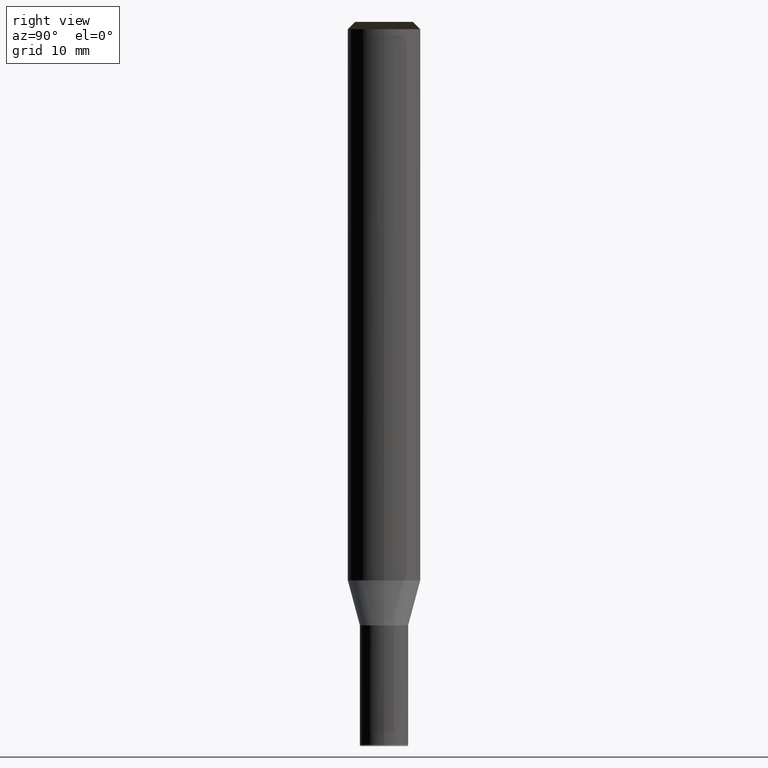
[diagram: clean part render]
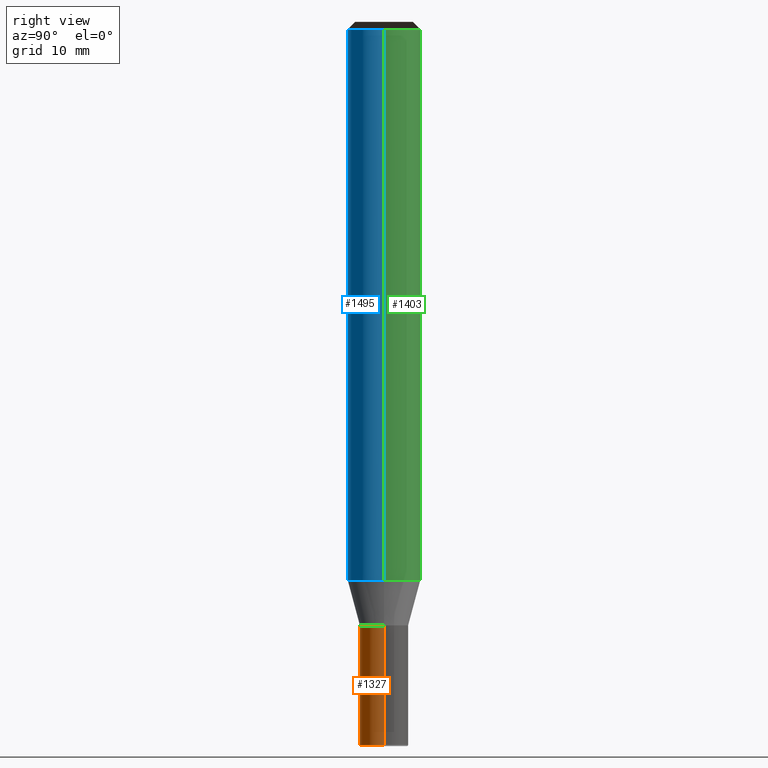
[diagram: same view with three faces highlighted in distinct colors, each labeled with its STEP entity id]
A machine part, right view with three faces highlighted in distinct colors.
Their STEP definitions:

[orange] entity #1327 — the highlighted face is a freeform B-spline surface patch.
#1137=CARTESIAN_POINT('',(2.0,0.0,-13.632050807569));
#1141=CARTESIAN_POINT('',(-2.0,0.0,-13.632050807569));
#1142=CARTESIAN_POINT('',(2.0,0.0,-3.732050807569));
#1146=CARTESIAN_POINT('',(-2.0,0.0,-3.732050807569));
#1160=CARTESIAN_POINT('',(-2.0,-2.0,-13.632050807569));
#1161=CARTESIAN_POINT('',(0.0,-2.0,-13.632050807569));
#1162=CARTESIAN_POINT('',(2.0,-2.0,-13.632050807569));
#1163=CARTESIAN_POINT('',(-2.0,-2.0,-3.732050807569));
#1164=CARTESIAN_POINT('',(0.0,-2.0,-3.732050807569));
#1165=CARTESIAN_POINT('',(2.0,-2.0,-3.732050807569));
#1308=(
BOUNDED_SURFACE()
B_SPLINE_SURFACE(1,2,(
(#1141,#1160,#1161,#1162,#1137),
(#1146,#1163,#1164,#1165,#1142)
), .UNSPECIFIED.,.F.,.F.,.F.)
B_SPLINE_SURFACE_WITH_KNOTS((2,2),(3,2,3),(
0.0,1.0),(
0.0,0.5,1.0), .UNSPECIFIED.)
GEOMETRIC_REPRESENTATION_ITEM()
RATIONAL_B_SPLINE_SURFACE(((1.0,0.707106781187,1.0,0.707106781187,1.0),
(1.0,0.707106781187,1.0,0.707106781187,1.0)
))
REPRESENTATION_ITEM('')
SURFACE()
);
#1309=(
BOUNDED_CURVE()
B_SPLINE_CURVE(1,(#1146,#1141),.UNSPECIFIED.,.F.,.F.)
B_SPLINE_CURVE_WITH_KNOTS((2,2),
(0.0,1.0),.UNSPECIFIED.)
CURVE()
GEOMETRIC_REPRESENTATION_ITEM()
RATIONAL_B_SPLINE_CURVE((1.0,1.0))
REPRESENTATION_ITEM('')
);
#1310=(
BOUNDED_CURVE()
B_SPLINE_CURVE(2,(#1141,#1160,#1161,#1162,#1137),.UNSPECIFIED.,.F.,.F.)
B_SPLINE_CURVE_WITH_KNOTS((3,2,3),
(0.0,0.5,1.0),.UNSPECIFIED.)
CURVE()
GEOMETRIC_REPRESENTATION_ITEM()
RATIONAL_B_SPLINE_CURVE((1.0,0.707106781187,1.0,0.707106781187,1.0))
REPRESENTATION_ITEM('')
);
#1311=(
BOUNDED_CURVE()
B_SPLINE_CURVE(1,(#1137,#1142),.UNSPECIFIED.,.F.,.F.)
B_SPLINE_CURVE_WITH_KNOTS((2,2),
(0.0,1.0),.UNSPECIFIED.)
CURVE()
GEOMETRIC_REPRESENTATION_ITEM()
RATIONAL_B_SPLINE_CURVE((1.0,1.0))
REPRESENTATION_ITEM('')
);
#1312=(
BOUNDED_CURVE()
B_SPLINE_CURVE(2,(#1142,#1165,#1164,#1163,#1146),.UNSPECIFIED.,.F.,.F.)
B_SPLINE_CURVE_WITH_KNOTS((3,2,3),
(0.0,0.5,1.0),.UNSPECIFIED.)
CURVE()
GEOMETRIC_REPRESENTATION_ITEM()
RATIONAL_B_SPLINE_CURVE((1.0,0.707106781187,1.0,0.707106781187,1.0))
REPRESENTATION_ITEM('')
);
#1313=VERTEX_POINT('',#1137);
#1314=VERTEX_POINT('',#1141);
#1315=VERTEX_POINT('',#1142);
#1316=VERTEX_POINT('',#1146);
#1317=EDGE_CURVE('',#1316,#1314,#1309,.T.);
#1318=EDGE_CURVE('',#1314,#1313,#1310,.T.);
#1319=EDGE_CURVE('',#1313,#1315,#1311,.T.);
#1320=EDGE_CURVE('',#1315,#1316,#1312,.T.);
#1321=ORIENTED_EDGE('',*,*,#1317,.T.);
#1322=ORIENTED_EDGE('',*,*,#1318,.T.);
#1323=ORIENTED_EDGE('',*,*,#1319,.T.);
#1324=ORIENTED_EDGE('',*,*,#1320,.T.);
#1325=EDGE_LOOP('',(#1321,#1322,#1323,#1324));
#1326=FACE_OUTER_BOUND('',#1325,.T.);
#1327=ADVANCED_FACE('',(#1326),#1308,.T.);

[blue] entity #1495 — the highlighted face is a freeform B-spline surface patch.
#1166=CARTESIAN_POINT('',(3.0,0.0,0.0));
#1170=CARTESIAN_POINT('',(-3.0,0.0,0.0));
#1171=CARTESIAN_POINT('',(3.0,0.0,45.667949192431));
#1175=CARTESIAN_POINT('',(-3.0,0.0,45.667949192431));
#1182=CARTESIAN_POINT('',(-3.0,-3.0,0.0));
#1183=CARTESIAN_POINT('',(0.0,-3.0,0.0));
#1184=CARTESIAN_POINT('',(3.0,-3.0,0.0));
#1185=CARTESIAN_POINT('',(-3.0,-3.0,45.667949192431));
#1186=CARTESIAN_POINT('',(0.0,-3.0,45.667949192431));
#1187=CARTESIAN_POINT('',(3.0,-3.0,45.667949192431));
#1476=(
BOUNDED_SURFACE()
B_SPLINE_SURFACE(1,2,(
(#1170,#1182,#1183,#1184,#1166),
(#1175,#1185,#1186,#1187,#1171)
), .UNSPECIFIED.,.F.,.F.,.F.)
B_SPLINE_SURFACE_WITH_KNOTS((2,2),(3,2,3),(
0.0,1.0),(
0.0,0.5,1.0), .UNSPECIFIED.)
GEOMETRIC_REPRESENTATION_ITEM()
RATIONAL_B_SPLINE_SURFACE(((1.0,0.707106781187,1.0,0.707106781187,1.0),
(1.0,0.707106781187,1.0,0.707106781187,1.0)
))
REPRESENTATION_ITEM('')
SURFACE()
);
#1477=(
BOUNDED_CURVE()
B_SPLINE_CURVE(1,(#1175,#1170),.UNSPECIFIED.,.F.,.F.)
B_SPLINE_CURVE_WITH_KNOTS((2,2),
(0.0,1.0),.UNSPECIFIED.)
CURVE()
GEOMETRIC_REPRESENTATION_ITEM()
RATIONAL_B_SPLINE_CURVE((1.0,1.0))
REPRESENTATION_ITEM('')
);
#1478=(
BOUNDED_CURVE()
B_SPLINE_CURVE(2,(#1170,#1182,#1183,#1184,#1166),.UNSPECIFIED.,.F.,.F.)
B_SPLINE_CURVE_WITH_KNOTS((3,2,3),
(0.0,0.5,1.0),.UNSPECIFIED.)
CURVE()
GEOMETRIC_REPRESENTATION_ITEM()
RATIONAL_B_SPLINE_CURVE((1.0,0.707106781187,1.0,0.707106781187,1.0))
REPRESENTATION_ITEM('')
);
#1479=(
BOUNDED_CURVE()
B_SPLINE_CURVE(1,(#1166,#1171),.UNSPECIFIED.,.F.,.F.)
B_SPLINE_CURVE_WITH_KNOTS((2,2),
(0.0,1.0),.UNSPECIFIED.)
CURVE()
GEOMETRIC_REPRESENTATION_ITEM()
RATIONAL_B_SPLINE_CURVE((1.0,1.0))
REPRESENTATION_ITEM('')
);
#1480=(
BOUNDED_CURVE()
B_SPLINE_CURVE(2,(#1171,#1187,#1186,#1185,#1175),.UNSPECIFIED.,.F.,.F.)
B_SPLINE_CURVE_WITH_KNOTS((3,2,3),
(0.0,0.5,1.0),.UNSPECIFIED.)
CURVE()
GEOMETRIC_REPRESENTATION_ITEM()
RATIONAL_B_SPLINE_CURVE((1.0,0.707106781187,1.0,0.707106781187,1.0))
REPRESENTATION_ITEM('')
);
#1481=VERTEX_POINT('',#1166);
#1482=VERTEX_POINT('',#1170);
#1483=VERTEX_POINT('',#1171);
#1484=VERTEX_POINT('',#1175);
#1485=EDGE_CURVE('',#1484,#1482,#1477,.T.);
#1486=EDGE_CURVE('',#1482,#1481,#1478,.T.);
#1487=EDGE_CURVE('',#1481,#1483,#1479,.T.);
#1488=EDGE_CURVE('',#1483,#1484,#1480,.T.);
#1489=ORIENTED_EDGE('',*,*,#1485,.T.);
#1490=ORIENTED_EDGE('',*,*,#1486,.T.);
#1491=ORIENTED_EDGE('',*,*,#1487,.T.);
#1492=ORIENTED_EDGE('',*,*,#1488,.T.);
#1493=EDGE_LOOP('',(#1489,#1490,#1491,#1492));
#1494=FACE_OUTER_BOUND('',#1493,.T.);
#1495=ADVANCED_FACE('',(#1494),#1476,.T.);

[green] entity #1403 — the highlighted face is a freeform B-spline surface patch.
#1166=CARTESIAN_POINT('',(3.0,0.0,0.0));
#1167=CARTESIAN_POINT('',(3.0,3.0,0.0));
#1168=CARTESIAN_POINT('',(0.0,3.0,0.0));
#1169=CARTESIAN_POINT('',(-3.0,3.0,0.0));
#1170=CARTESIAN_POINT('',(-3.0,0.0,0.0));
#1171=CARTESIAN_POINT('',(3.0,0.0,45.667949192431));
#1172=CARTESIAN_POINT('',(3.0,3.0,45.667949192431));
#1173=CARTESIAN_POINT('',(0.0,3.0,45.667949192431));
#1174=CARTESIAN_POINT('',(-3.0,3.0,45.667949192431));
#1175=CARTESIAN_POINT('',(-3.0,0.0,45.667949192431));
#1384=(
BOUNDED_SURFACE()
B_SPLINE_SURFACE(1,2,(
(#1166,#1167,#1168,#1169,#1170),
(#1171,#1172,#1173,#1174,#1175)
), .UNSPECIFIED.,.F.,.F.,.F.)
B_SPLINE_SURFACE_WITH_KNOTS((2,2),(3,2,3),(
0.0,1.0),(
0.0,0.5,1.0), .UNSPECIFIED.)
GEOMETRIC_REPRESENTATION_ITEM()
RATIONAL_B_SPLINE_SURFACE(((1.0,0.707106781187,1.0,0.707106781187,1.0),
(1.0,0.707106781187,1.0,0.707106781187,1.0)
))
REPRESENTATION_ITEM('')
SURFACE()
);
#1385=(
BOUNDED_CURVE()
B_SPLINE_CURVE(2,(#1171,#1172,#1173,#1174,#1175),.UNSPECIFIED.,.F.,.F.)
B_SPLINE_CURVE_WITH_KNOTS((3,2,3),
(0.0,0.5,1.0),.UNSPECIFIED.)
CURVE()
GEOMETRIC_REPRESENTATION_ITEM()
RATIONAL_B_SPLINE_CURVE((1.0,0.707106781187,1.0,0.707106781187,1.0))
REPRESENTATION_ITEM('')
);
#1386=(
BOUNDED_CURVE()
B_SPLINE_CURVE(1,(#1175,#1170),.UNSPECIFIED.,.F.,.F.)
B_SPLINE_CURVE_WITH_KNOTS((2,2),
(0.0,1.0),.UNSPECIFIED.)
CURVE()
GEOMETRIC_REPRESENTATION_ITEM()
RATIONAL_B_SPLINE_CURVE((1.0,1.0))
REPRESENTATION_ITEM('')
);
#1387=(
BOUNDED_CURVE()
B_SPLINE_CURVE(2,(#1170,#1169,#1168,#1167,#1166),.UNSPECIFIED.,.F.,.F.)
B_SPLINE_CURVE_WITH_KNOTS((3,2,3),
(0.0,0.5,1.0),.UNSPECIFIED.)
CURVE()
GEOMETRIC_REPRESENTATION_ITEM()
RATIONAL_B_SPLINE_CURVE((1.0,0.707106781187,1.0,0.707106781187,1.0))
REPRESENTATION_ITEM('')
);
#1388=(
BOUNDED_CURVE()
B_SPLINE_CURVE(1,(#1166,#1171),.UNSPECIFIED.,.F.,.F.)
B_SPLINE_CURVE_WITH_KNOTS((2,2),
(0.0,1.0),.UNSPECIFIED.)
CURVE()
GEOMETRIC_REPRESENTATION_ITEM()
RATIONAL_B_SPLINE_CURVE((1.0,1.0))
REPRESENTATION_ITEM('')
);
#1389=VERTEX_POINT('',#1166);
#1390=VERTEX_POINT('',#1170);
#1391=VERTEX_POINT('',#1171);
#1392=VERTEX_POINT('',#1175);
#1393=EDGE_CURVE('',#1391,#1392,#1385,.T.);
#1394=EDGE_CURVE('',#1392,#1390,#1386,.T.);
#1395=EDGE_CURVE('',#1390,#1389,#1387,.T.);
#1396=EDGE_CURVE('',#1389,#1391,#1388,.T.);
#1397=ORIENTED_EDGE('',*,*,#1393,.T.);
#1398=ORIENTED_EDGE('',*,*,#1394,.T.);
#1399=ORIENTED_EDGE('',*,*,#1395,.T.);
#1400=ORIENTED_EDGE('',*,*,#1396,.T.);
#1401=EDGE_LOOP('',(#1397,#1398,#1399,#1400));
#1402=FACE_OUTER_BOUND('',#1401,.T.);
#1403=ADVANCED_FACE('',(#1402),#1384,.T.);